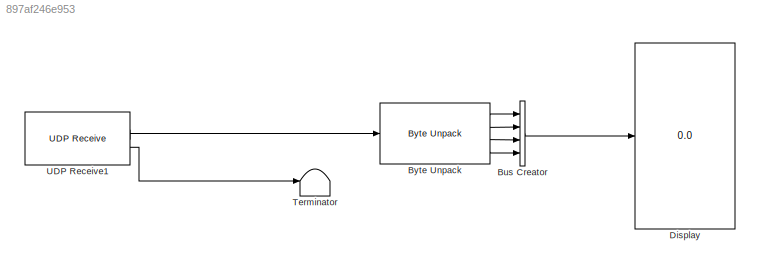
MODEL slx_897af246e953
KIND model
CONFIG AbsTol = auto
CONFIG EnableMultiTasking = off
CONFIG FixedStep = 0.01
CONFIG MaxStep = auto
CONFIG MinStep = auto
CONFIG RelTol = 1e-3
CONFIG SampleTimeConstraint = Unconstrained
CONFIG Solver = FixedStepDiscrete
CONFIG SolverName = FixedStepDiscrete
CONFIG StartTime = 0.0
CONFIG StopTime = inf
BLOCK [BusCreator] Bus Creator
  DisplayOption = bar
  InheritFromInputs = on
  Inputs = 4
  Ports = [4, 1]
BLOCK [Reference] Byte Unpack  REF=etargetslib/Byte Unpack
  Ports = [1, 4]
  SourceBlock = etargetslib/Byte Unpack
  SourceType = Byte Unpack
BLOCK [Display] Display
  Decimation = 1
  Ports = [1]
BLOCK [Terminator] Terminator
BLOCK [Reference] UDP Receive1  REF=dspnetwork/UDP Receive
  Ports = [0, 2]
  SourceBlock = dspnetwork/UDP Receive
  SourceProductBaseCode = DS
  SourceProductName = DSP System Toolbox
  SourceType = UDP Receive
LINE Bus Creator:1 -> Display:1
LINE Byte Unpack:1 -> Bus Creator:1
LINE Byte Unpack:2 -> Bus Creator:2
LINE Byte Unpack:3 -> Bus Creator:3
LINE Byte Unpack:4 -> Bus Creator:4
LINE UDP Receive1:1 -> Byte Unpack:1
LINE UDP Receive1:2 -> Terminator:1
